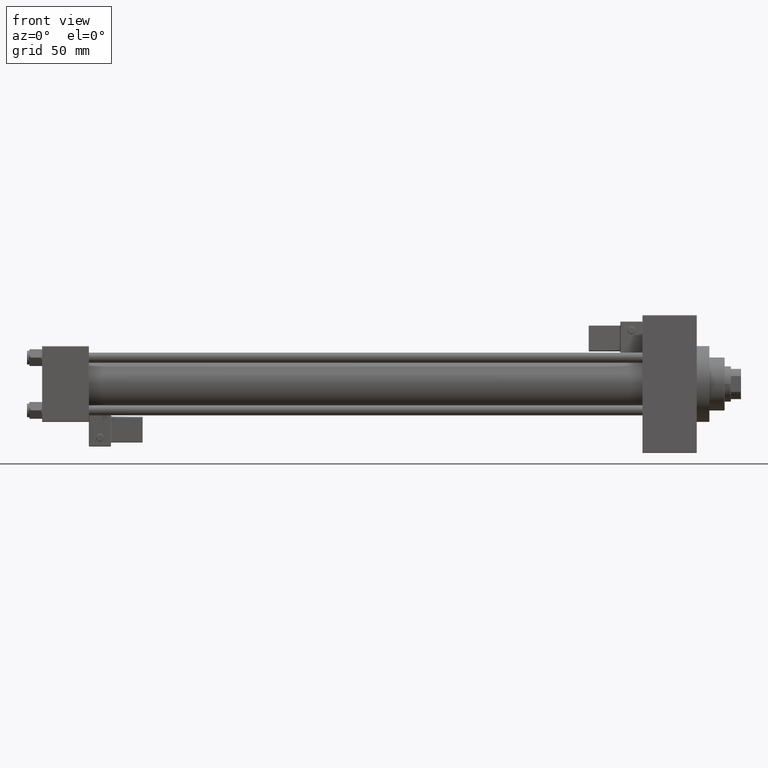
[diagram: clean part render]
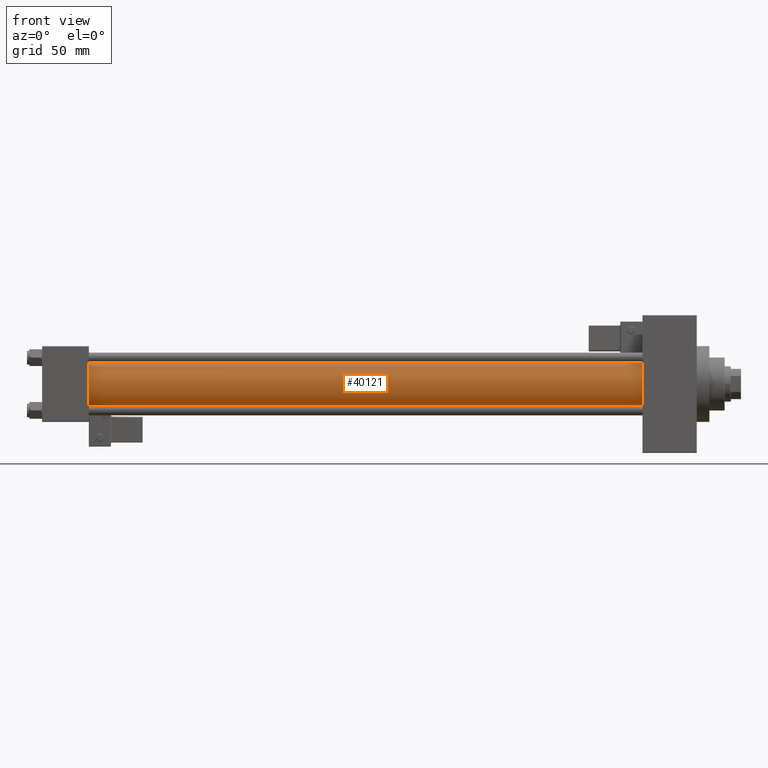
[diagram: same view with one face highlighted and labeled with its STEP entity id]
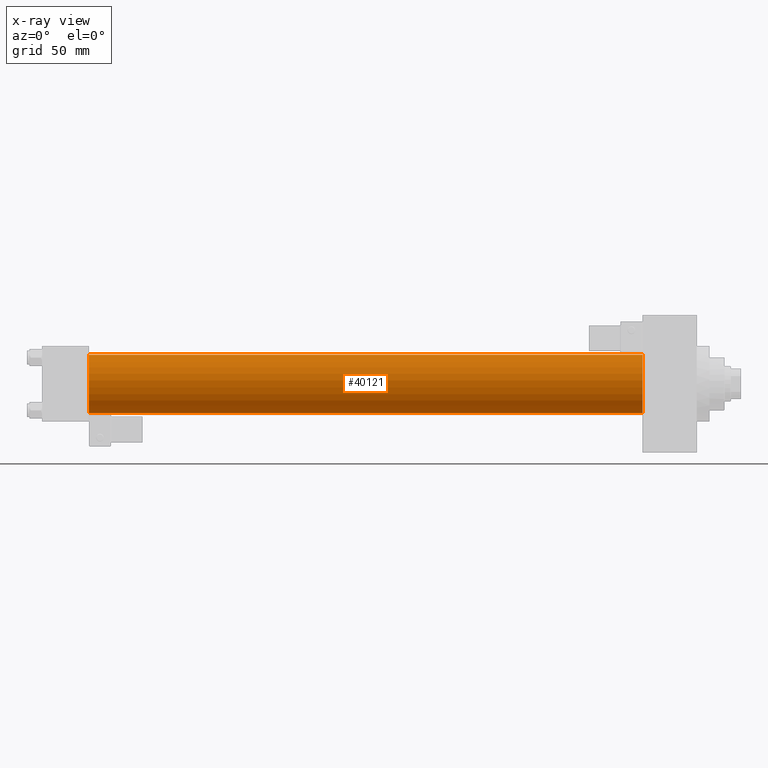
[diagram: x-ray of the same camera — body ghosted, the highlighted face saturated]
A machine part, front view. The second image highlights one B-rep face of the part: STEP entity #40121.
The next image is the same camera in x-ray: the body ghosted, the highlighted face saturated — about 0% of this face is hidden behind the body in this view.
In plain terms, the highlighted cylindrical surface (edge-blend (fillet) strip) has radius 23 mm, axis along (-1, -0, -0).
Its self-contained STEP definition (entity closure, byte-faithful):
#4889 = CARTESIAN_POINT ( 'NONE',  ( 475.0000000000000000, -2.602085213965210642E-15, 0.000000000000000000 ) ) ;
#5021 = VECTOR ( 'NONE', #23725, 1000.000000000000000 ) ;
#6811 = DIRECTION ( 'NONE',  ( -1.000000000000000000, -0.000000000000000000, -0.000000000000000000 ) ) ;
#7332 = AXIS2_PLACEMENT_3D ( 'NONE', #8336, #12597, #46808 ) ;
#8160 = DIRECTION ( 'NONE',  ( 1.000000000000000000, 0.000000000000000000, 0.000000000000000000 ) ) ;
#8336 = CARTESIAN_POINT ( 'NONE',  ( 36.99999999999997868, -2.602085213965210642E-15, 0.000000000000000000 ) ) ;
#10495 = EDGE_LOOP ( 'NONE', ( #10719, #12710, #32926, #49023 ) ) ;
#10719 = ORIENTED_EDGE ( 'NONE', *, *, #24335, .F. ) ;
#12597 = DIRECTION ( 'NONE',  ( 1.000000000000000000, -0.000000000000000000, 0.000000000000000000 ) ) ;
#12710 = ORIENTED_EDGE ( 'NONE', *, *, #23840, .F. ) ;
#13790 = CARTESIAN_POINT ( 'NONE',  ( 475.0000000000000000, -2.602085213965210642E-15, 23.00000000000000000 ) ) ;
#14733 = FACE_OUTER_BOUND ( 'NONE', #10495, .T. ) ;
#15277 = VERTEX_POINT ( 'NONE', #34912 ) ;
#15714 = DIRECTION ( 'NONE',  ( 0.000000000000000000, 0.000000000000000000, -1.000000000000000000 ) ) ;
#16931 = LINE ( 'NONE', #40049, #5021 ) ;
#17774 = CIRCLE ( 'NONE', #7332, 23.00000000000000000 ) ;
#19985 = EDGE_CURVE ( 'NONE', #38331, #15277, #17774, .T. ) ;
#23725 = DIRECTION ( 'NONE',  ( -1.000000000000000000, -0.000000000000000000, -0.000000000000000000 ) ) ;
#23840 = EDGE_CURVE ( 'NONE', #43370, #45419, #33153, .T. ) ;
#24335 = EDGE_CURVE ( 'NONE', #45419, #15277, #33203, .T. ) ;
#25784 = CYLINDRICAL_SURFACE ( 'NONE', #30860, 23.00000000000000000 ) ;
#29131 = AXIS2_PLACEMENT_3D ( 'NONE', #4889, #8160, #15714 ) ;
#30057 = DIRECTION ( 'NONE',  ( 0.000000000000000000, 0.000000000000000000, 1.000000000000000000 ) ) ;
#30860 = AXIS2_PLACEMENT_3D ( 'NONE', #33823, #41634, #30057 ) ;
#32578 = CARTESIAN_POINT ( 'NONE',  ( 36.99999999999997868, -2.602085213965210642E-15, 23.00000000000000000 ) ) ;
#32845 = CARTESIAN_POINT ( 'NONE',  ( 475.0000000000000000, 2.146024240737016609E-16, -23.00000000000000000 ) ) ;
#32926 = ORIENTED_EDGE ( 'NONE', *, *, #36226, .T. ) ;
#33153 = CIRCLE ( 'NONE', #29131, 23.00000000000000000 ) ;
#33203 = LINE ( 'NONE', #33705, #35561 ) ;
#33705 = CARTESIAN_POINT ( 'NONE',  ( 475.0000000000000000, 2.146024240737016609E-16, -23.00000000000000000 ) ) ;
#33823 = CARTESIAN_POINT ( 'NONE',  ( 475.0000000000000000, -2.602085213965210642E-15, 0.000000000000000000 ) ) ;
#34912 = CARTESIAN_POINT ( 'NONE',  ( 36.99999999999997868, 2.146024240737016609E-16, -23.00000000000000000 ) ) ;
#35561 = VECTOR ( 'NONE', #6811, 1000.000000000000000 ) ;
#36226 = EDGE_CURVE ( 'NONE', #43370, #38331, #16931, .T. ) ;
#38331 = VERTEX_POINT ( 'NONE', #32578 ) ;
#40049 = CARTESIAN_POINT ( 'NONE',  ( 475.0000000000000000, -2.602085213965210642E-15, 23.00000000000000000 ) ) ;
#40121 = ADVANCED_FACE ( 'NONE', ( #14733 ), #25784, .T. ) ;
#41634 = DIRECTION ( 'NONE',  ( -1.000000000000000000, -0.000000000000000000, -0.000000000000000000 ) ) ;
#43370 = VERTEX_POINT ( 'NONE', #13790 ) ;
#45419 = VERTEX_POINT ( 'NONE', #32845 ) ;
#46808 = DIRECTION ( 'NONE',  ( 0.000000000000000000, 0.000000000000000000, 1.000000000000000000 ) ) ;
#49023 = ORIENTED_EDGE ( 'NONE', *, *, #19985, .T. ) ;